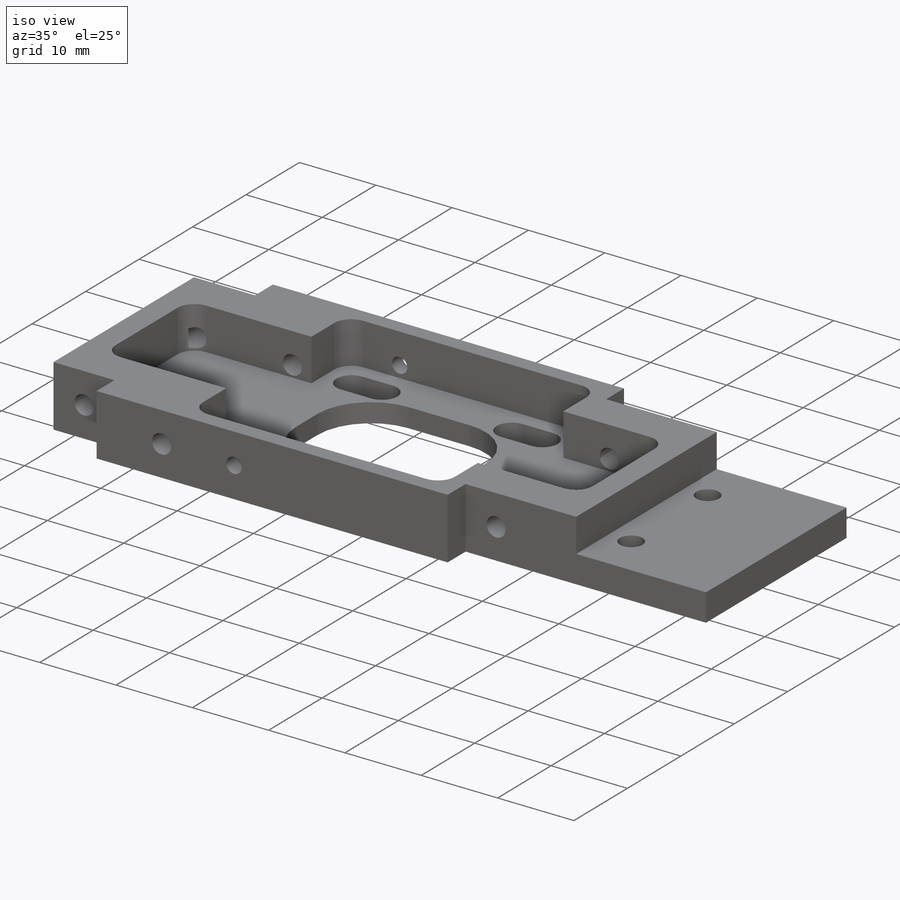
[diagram: iso view]
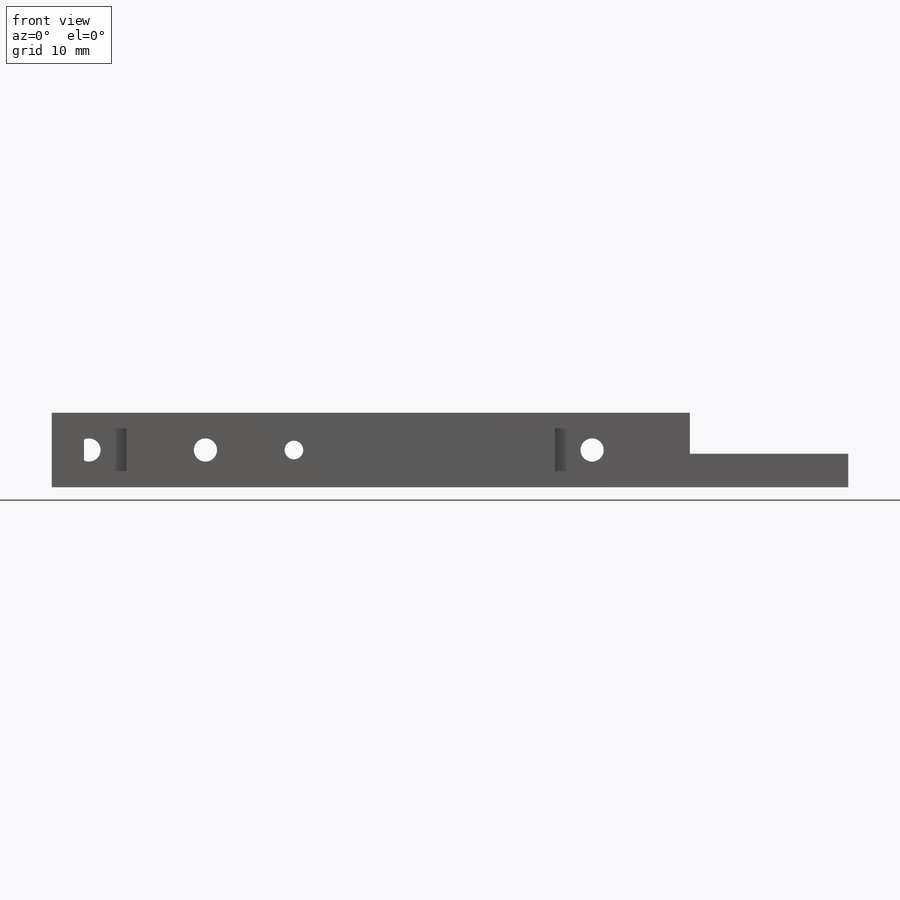
[diagram: front view]
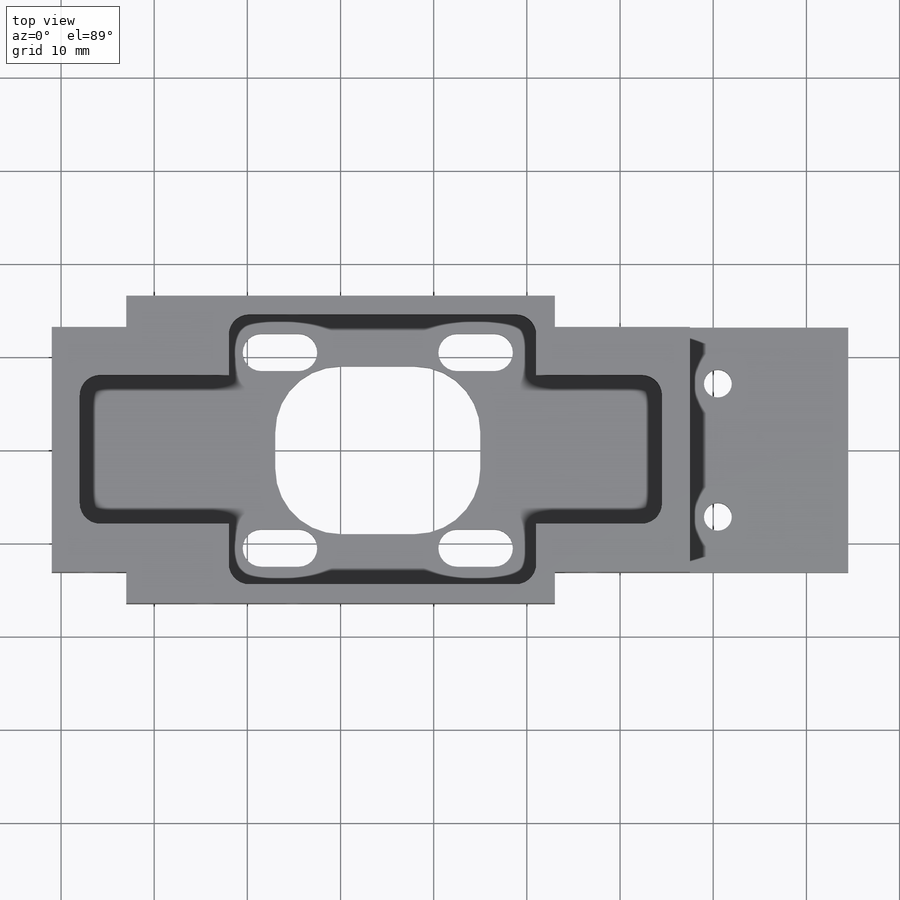
[diagram: top view]
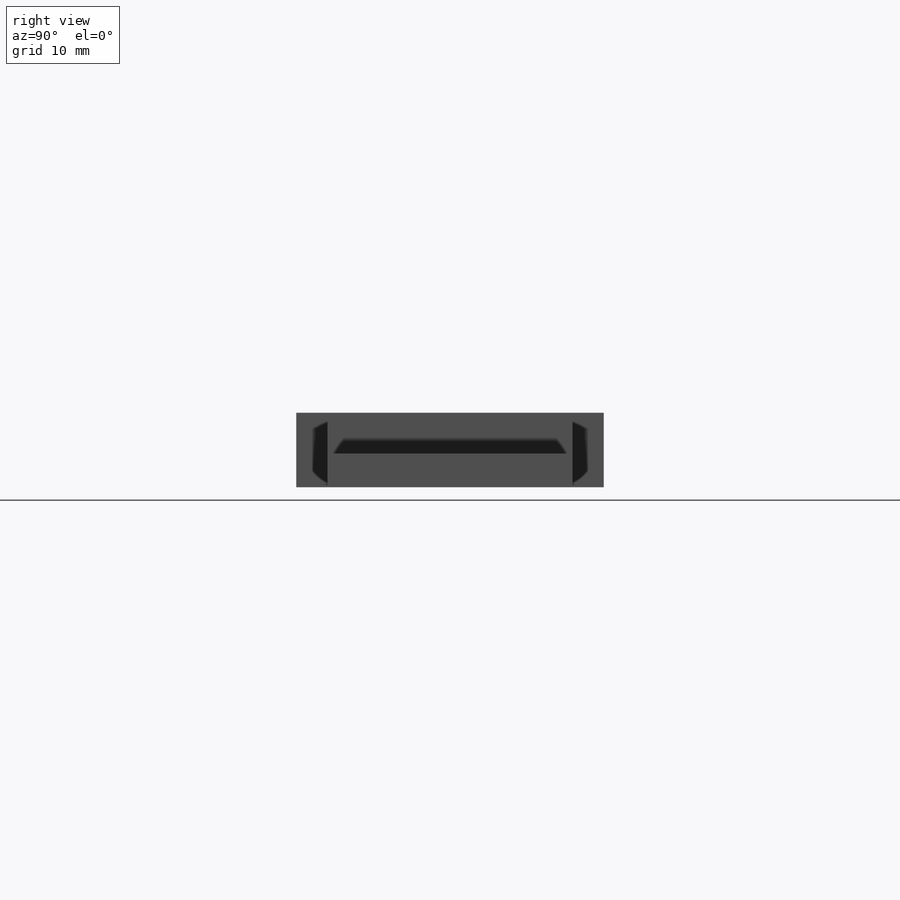
[diagram: right view]
SOLIDWORKS PART (.sldprt)
format: sldprt  version: not decoded by parser v0  size: 495,104 bytes
history: native  units: mm
features: sketch x10, cut_extrude x9, plane x3, material x1, extrude x1 (+10 scaffold rows collapsed)
feature tree (34):
  scaffold x10  (default folders/planes/origin — collapsed)
  material  "Материал <не указан>"
  plane  "Спереди"
  plane  "Сверху"
  plane  "Справа"
  sketch  "Эскиз1"  dims[c1.D8=3.0mm c1.D1=46.0mm c1.D2=23.0mm c1.D3=16.5mm c1.D4=3.35mm c1.D5=3.35mm c1.D6=8.0mm c1.D7=31.5mm c2.D8=26.3mm c2.D9=14.0mm c2.D10=6.0mm c2.D11=24.5mm c2.D12=39.5mm c2.D13=~24.644537mm c2.D3=13.15mm c3.D11=85.5mm]
  extrude  "Бобышка-Вытянуть1"  Depth=8mm
  sketch  "Эскиз2"  dims[D1=17.0mm]
  cut_extrude  "Вырез-Вытянуть1"  Depth=4.4mm
  sketch  "Эскиз3"  dims[c1.D8=~2.204806mm c1.D1=8.0mm c1.D2=8.0mm c1.D3=14.5mm c1.D4=33.0mm c1.D5=~14.998767mm c1.D6=3.0mm c1.D7=3.0mm c2.D5=~5.501233mm c2.D4=10.0mm c3.D5=33.0mm c3.D8=18.0mm c3.D4=19.0mm c4.D8=2.0mm]
  cut_extrude  "Вырез-Вытянуть3"  Depth=5.5mm
  sketch  "Эскиз6"  dims[c1.D2=7.0mm c1.D1=39.5mm c2.D2=22.0mm c2.D3=~22.020245mm c3.D2=61.5mm c3.D3=9.0mm c3.D4=9.0mm c3.D1=9.0mm c4.D2=7.0mm c4.D3=15.0mm c4.D4=18.0mm c5.D3=7.0mm c5.D4=15.0mm c5.D5=9.0mm]
  cut_extrude  "Вырез-Вытянуть4"  [1 undecoded]
  sketch  "Эскиз7"  dims[D8=2.0mm D1=36.0mm D2=44.0mm D3=10.5mm D4=4.0mm D5=8.0mm D6=2.0mm D7=4.0mm D9=10.5mm D10=6.5mm]
  cut_extrude  "Вырез-Вытянуть5"  [1 undecoded]
  sketch  "Эскиз9"  dims[D1=2.5mm D2=4.0mm D3=4.0mm]
  cut_extrude  "Вырез-Вытянуть6"  Depth=6mm
  sketch  "Эскиз10"  dims[D1=2.5mm D2=4.0mm D3=4.0mm]
  cut_extrude  "Вырез-Вытянуть7"  Depth=6mm
  sketch  "Эскиз11"  dims[D1=2.5mm D2=4.0mm D3=4.0mm]
  cut_extrude  "Вырез-Вытянуть8"  Depth=6mm
  sketch  "Эскиз12"  dims[D1=2.5mm D2=4.0mm D3=4.0mm]
  cut_extrude  "Вырез-Вытянуть9"  Depth=6mm
  sketch  "Эскиз13"  dims[D1=2.5mm D4=2.0mm D2=4.0mm D3=16.5mm D5=4.0mm D6=18.0mm]
  cut_extrude  "Вырез-Вытянуть10"  Depth=46mm
decode coverage: 18 of 20 modeling features carry decoded parameters
note: ~ marks probable driven/reference dimensions
note: 2 parameter values undecoded
note: suppression state not decoded; provenance and decode notes live in map.json
